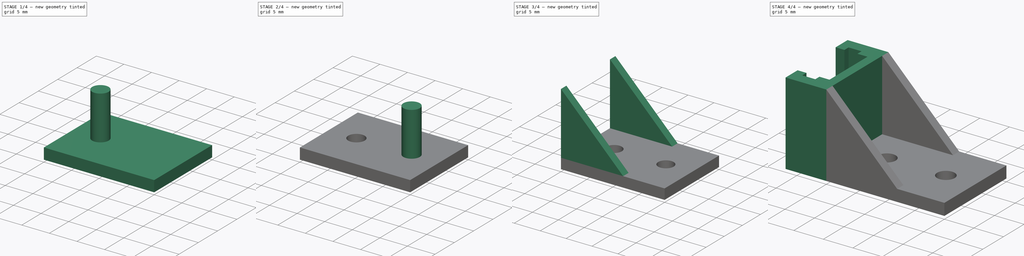
[diagram: build sequence overview — one tinted view per stage of 4, left to right]
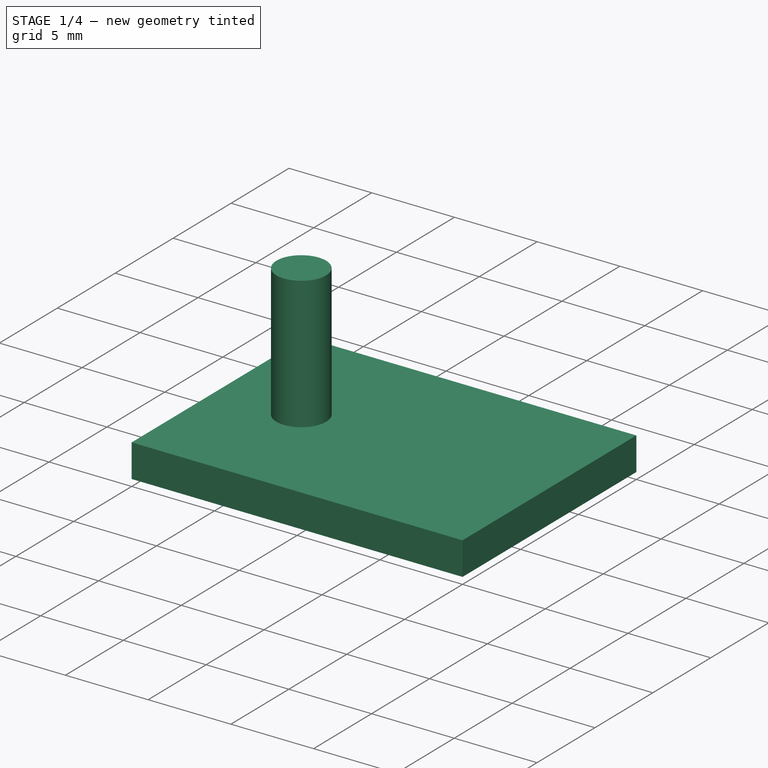
[diagram: stage 1 of 4 — iso view after this stage's code; geometry added in this stage tinted green]
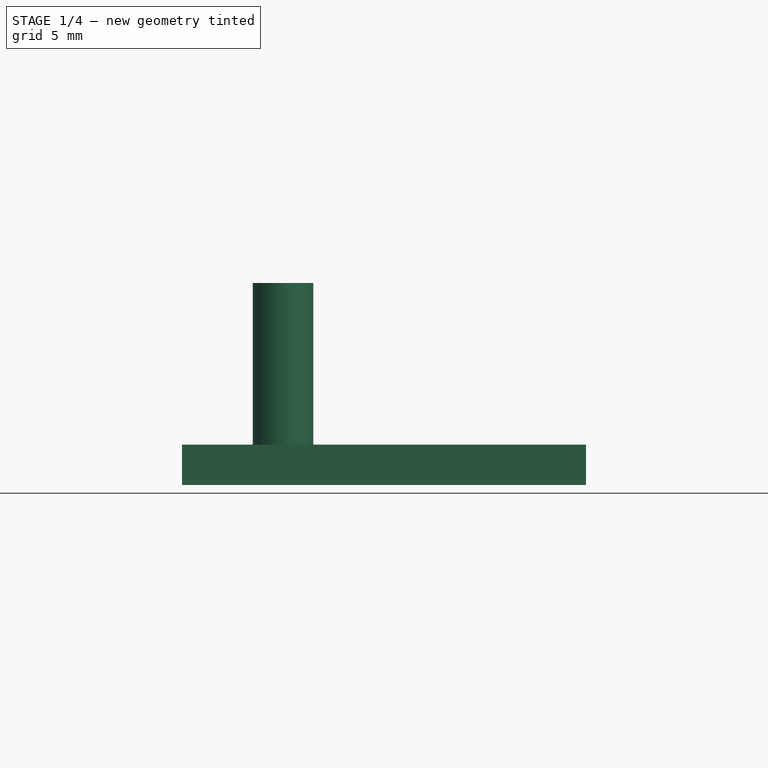
[diagram: stage 1 of 4 — front view after this stage's code; geometry added in this stage tinted green]
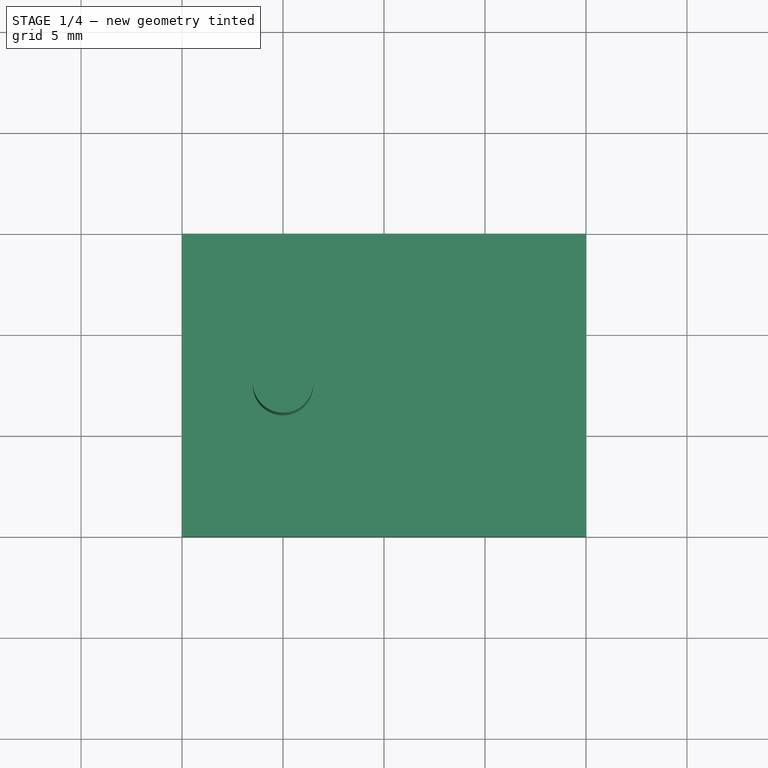
[diagram: stage 1 of 4 — top view after this stage's code; geometry added in this stage tinted green]
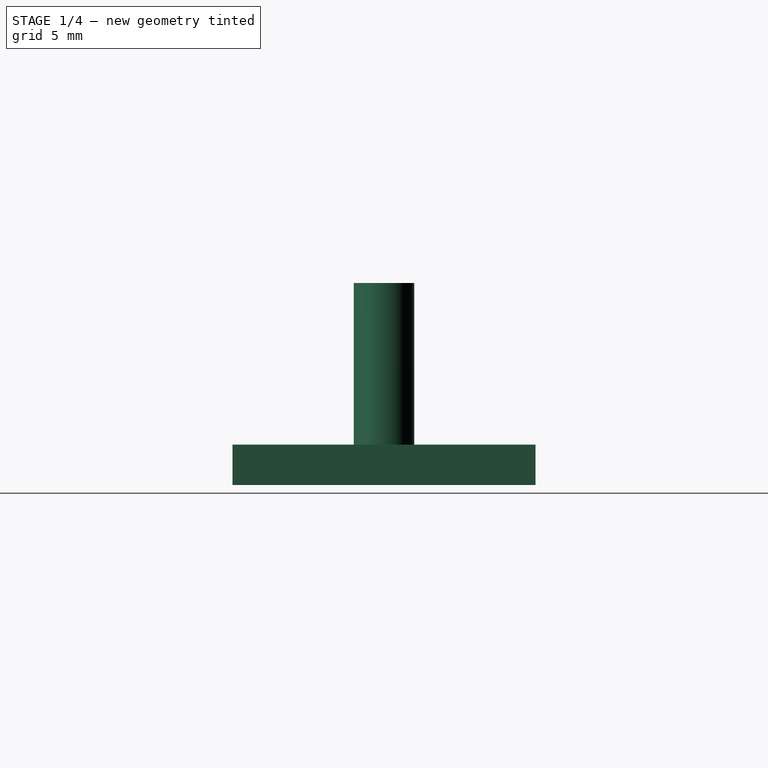
[diagram: stage 1 of 4 — right view after this stage's code; geometry added in this stage tinted green]
FCSTD DOCUMENT  (FreeCAD 0.16R6109 (Git))
Label: bracket1
License: All rights reserved
LicenseURL: http://en.wikipedia.org/wiki/All_rights_reserved
objects: Sketcher::SketchObject×3, PartDesign::Pad×3, Part::Cylinder×2, Part::Cut×2, Part::Box×1, Part::MultiFuse×1
note: 15 computed .brp shape members not serialized (recipe doc carries the construction recipe); baked Part::Feature solids carry a one-line shape summary decoded from their .brp

FEATURE [Part::Box] Box  label="Cube"
  Height = 2
  Length = 20
  Width = 15
FEATURE [Part::Cylinder] Cylinder
  Angle = 360
  Height = 10
  Placement = pos=(5,7.5,0) rot=(0,0,1;0rad)
  Radius = 1.5
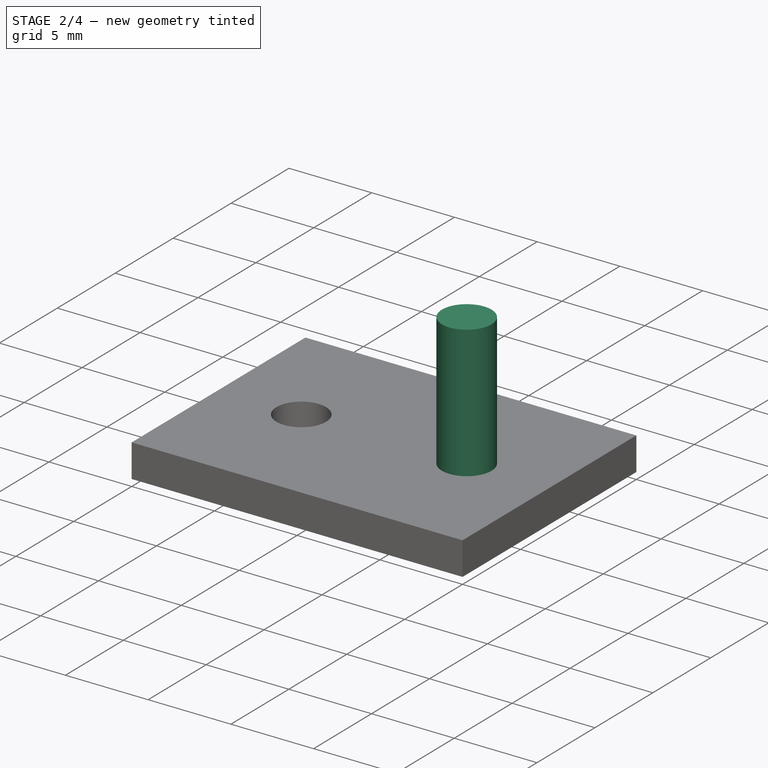
[diagram: stage 2 of 4 — iso view after this stage's code; geometry added in this stage tinted green]
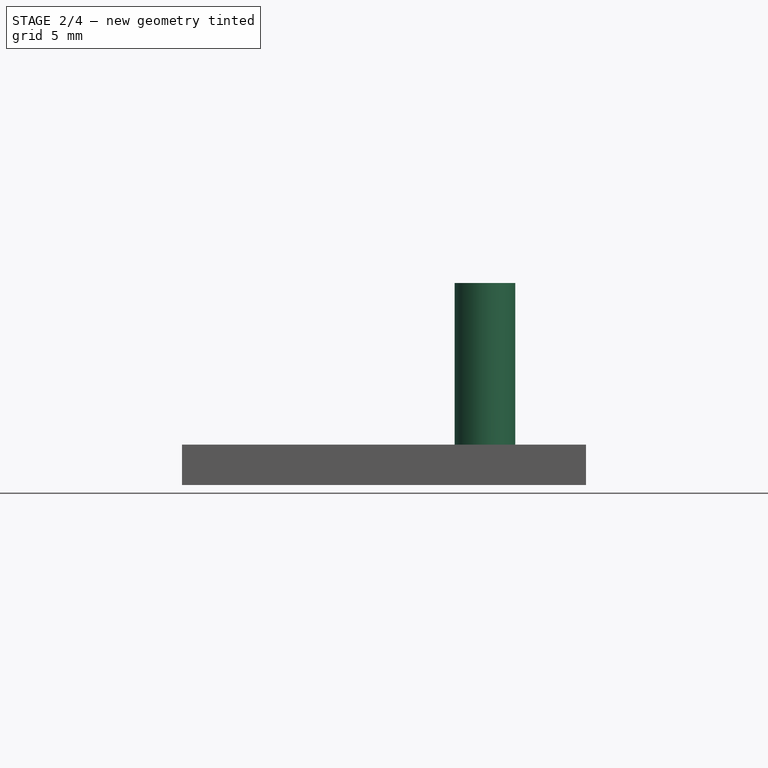
[diagram: stage 2 of 4 — front view after this stage's code; geometry added in this stage tinted green]
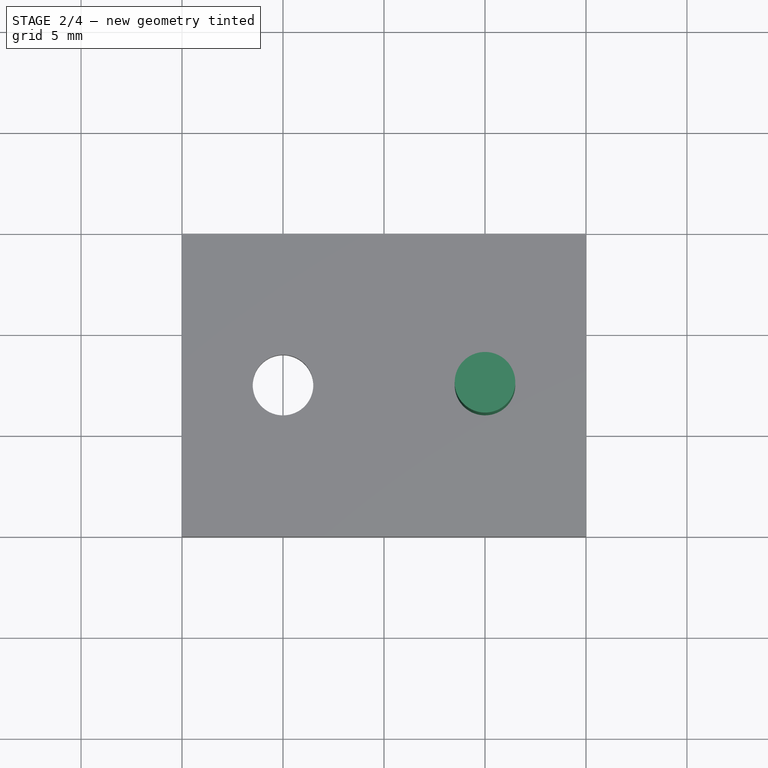
[diagram: stage 2 of 4 — top view after this stage's code; geometry added in this stage tinted green]
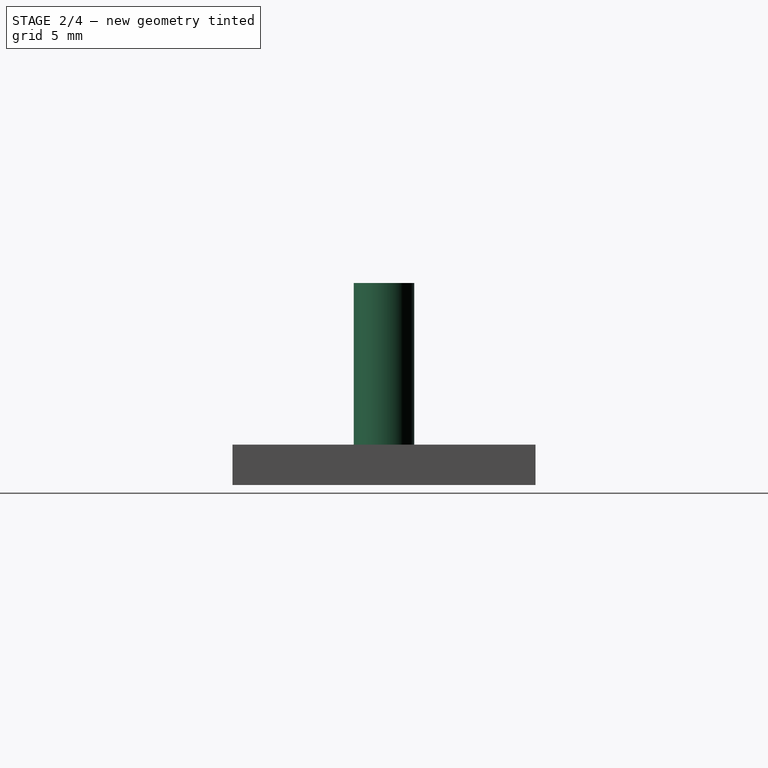
[diagram: stage 2 of 4 — right view after this stage's code; geometry added in this stage tinted green]
FEATURE [Part::Cylinder] Cylinder001
  Angle = 360
  Height = 10
  Placement = pos=(15,7.5,0) rot=(0,0,1;0rad)
  Radius = 1.5
FEATURE [Part::Cut] Cut
  Base = -> Box
  Tool = -> Cylinder
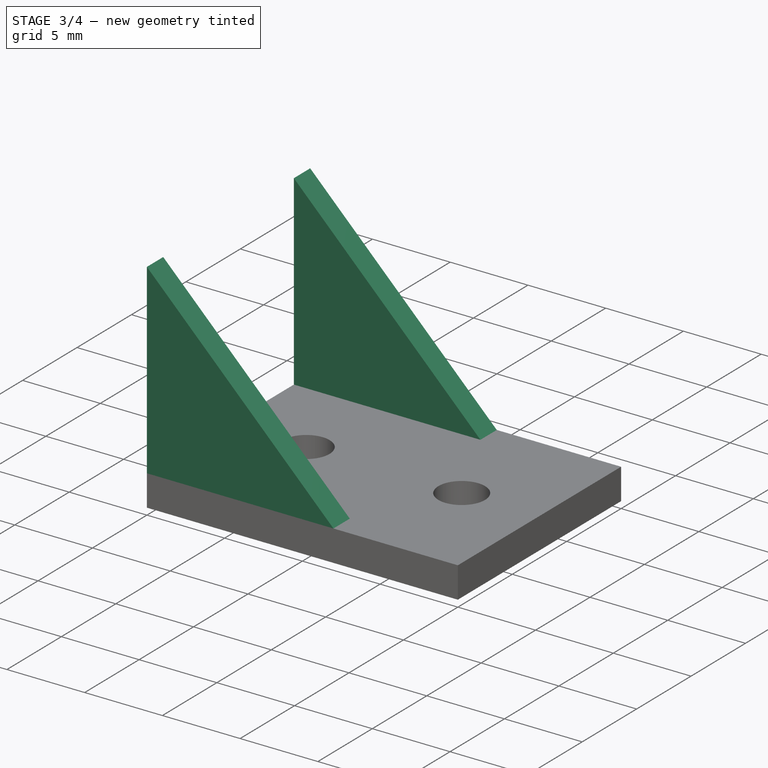
[diagram: stage 3 of 4 — iso view after this stage's code; geometry added in this stage tinted green]
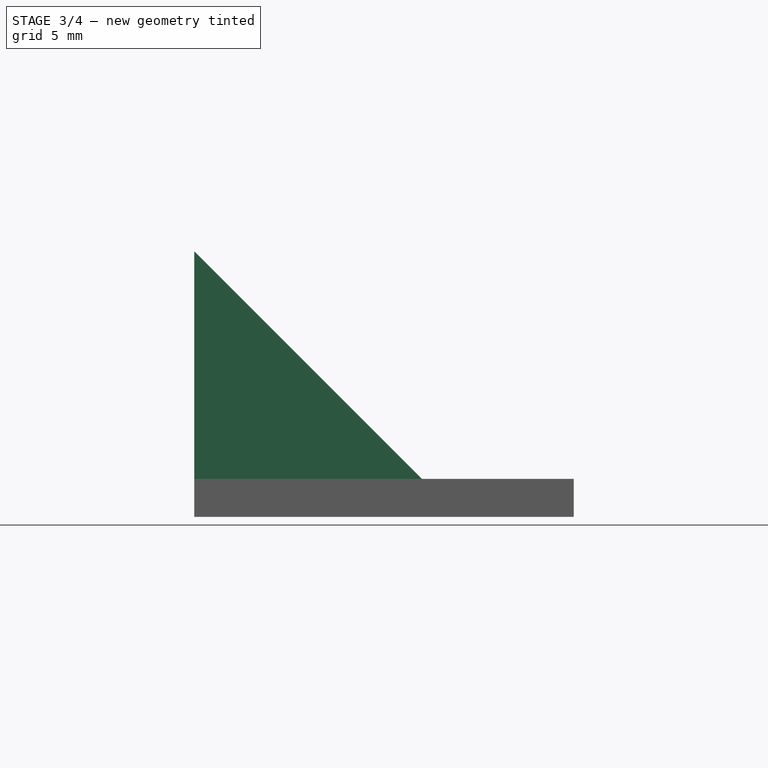
[diagram: stage 3 of 4 — front view after this stage's code; geometry added in this stage tinted green]
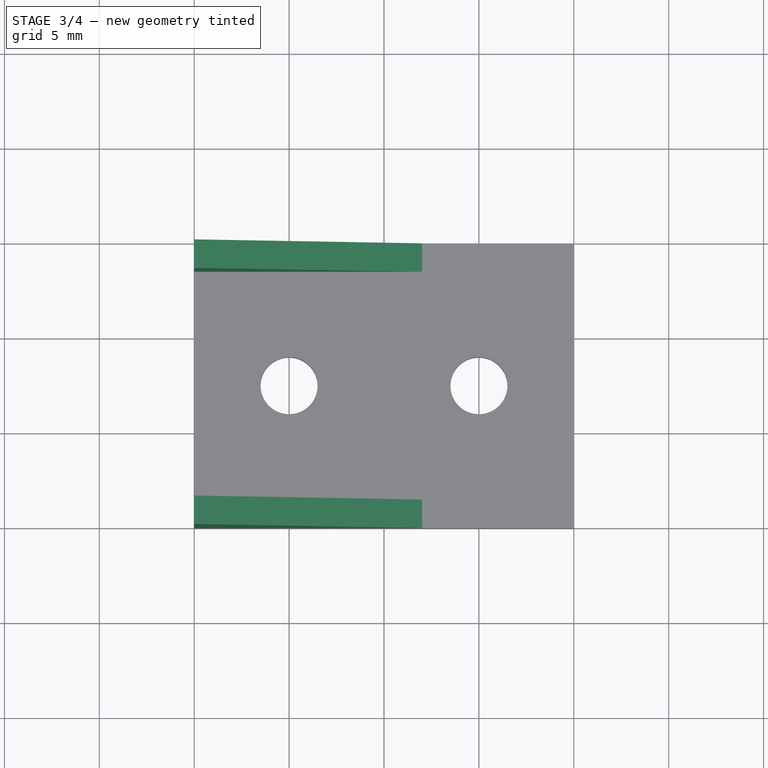
[diagram: stage 3 of 4 — top view after this stage's code; geometry added in this stage tinted green]
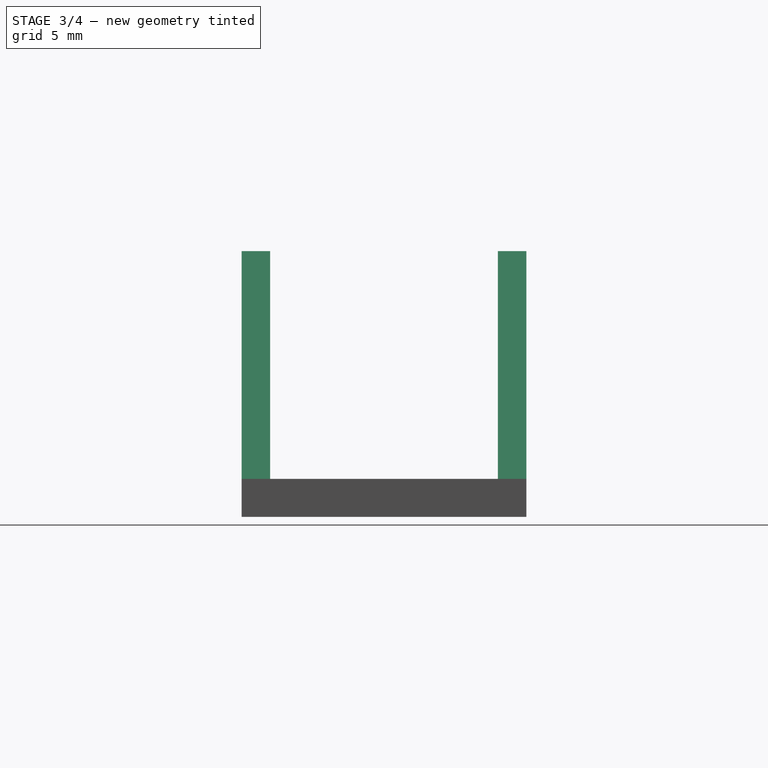
[diagram: stage 3 of 4 — right view after this stage's code; geometry added in this stage tinted green]
FEATURE [Sketcher::SketchObject] Sketch001
  Placement = pos=(0,15,0) rot=(1,0,0;1.5708rad)
  sketch-geometry (3):
    g0: LineSegment StartX=0 StartY=14 StartZ=0 EndX=12 EndY=2 EndZ=0
    g1: LineSegment StartX=12 StartY=2 StartZ=0 EndX=0 EndY=2 EndZ=0
    g2: LineSegment StartX=0 StartY=2 StartZ=0 EndX=0 EndY=14 EndZ=0
  constraints (9):
    c: PointOnObject(g0,g-2)
    c: Coincident(g0,g1)
    c: Coincident(g1,g2)
    c: Coincident(g2,g0)
    c: Vertical(g2)
    c: Distance(g-1,g1) = 2
    c: Parallel(g1,g-1)
    c: Equal(g1,g2)
    c: Distance(g1) = 12
FEATURE [PartDesign::Pad] Pad002
  Length = 1.5
  Length2 = 100
  Placement = pos=(0,15,0) rot=(1,0,0;1.5708rad)
  Sketch = -> Sketch001
  Type = 0
FEATURE [Sketcher::SketchObject] Sketch002
  Placement = pos=(0,1.5,0) rot=(1,0,0;1.5708rad)
  sketch-geometry (3):
    g0: LineSegment StartX=0 StartY=14 StartZ=0 EndX=12 EndY=2 EndZ=0
    g1: LineSegment StartX=12 StartY=2 StartZ=0 EndX=0 EndY=2 EndZ=0
    g2: LineSegment StartX=0 StartY=2 StartZ=0 EndX=0 EndY=14 EndZ=0
  constraints (9):
    c: PointOnObject(g0,g-2)
    c: Coincident(g0,g1)
    c: Coincident(g1,g2)
    c: Coincident(g2,g0)
    c: Vertical(g2)
    c: Distance(g-1,g1) = 2
    c: Parallel(g1,g-1)
    c: Equal(g1,g2)
    c: Distance(g1) = 12
FEATURE [PartDesign::Pad] Pad003
  Length = 1.5
  Length2 = 100
  Placement = pos=(0,1.5,0) rot=(1,0,0;1.5708rad)
  Sketch = -> Sketch002
  Type = 0
FEATURE [Part::Cut] Cut001
  Base = -> Cut
  Tool = -> Cylinder001
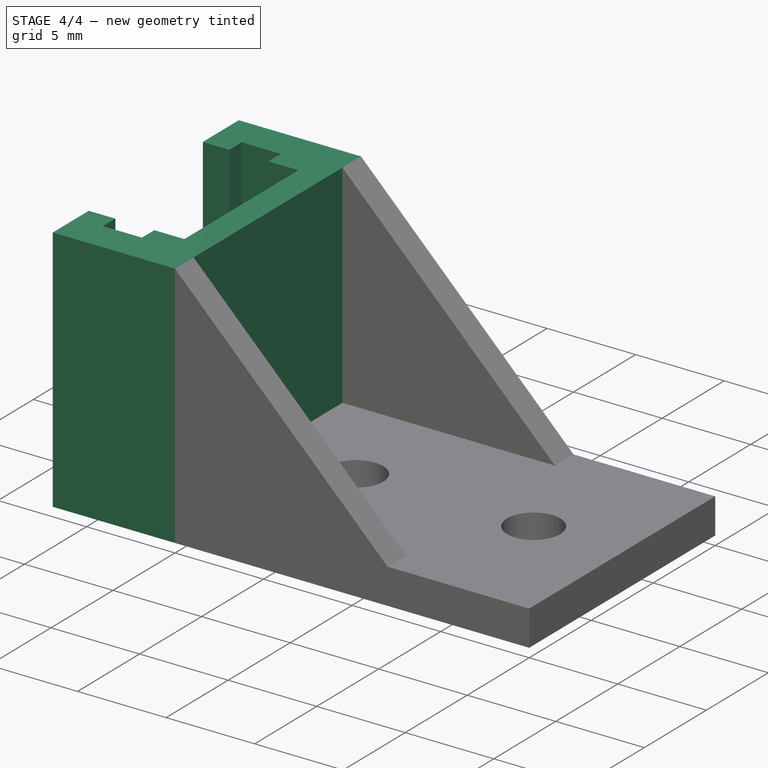
[diagram: stage 4 of 4 — iso view after this stage's code; geometry added in this stage tinted green]
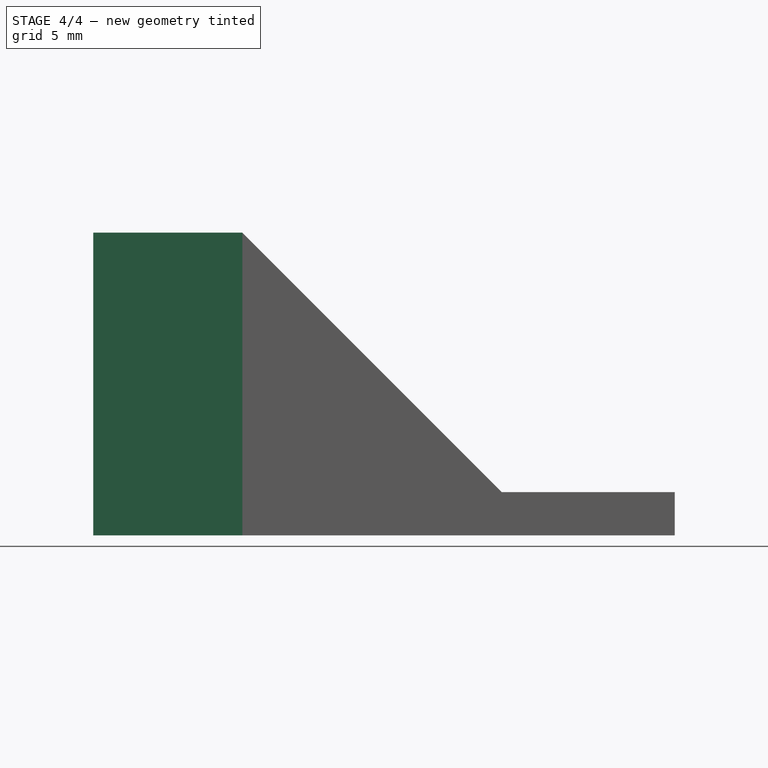
[diagram: stage 4 of 4 — front view after this stage's code; geometry added in this stage tinted green]
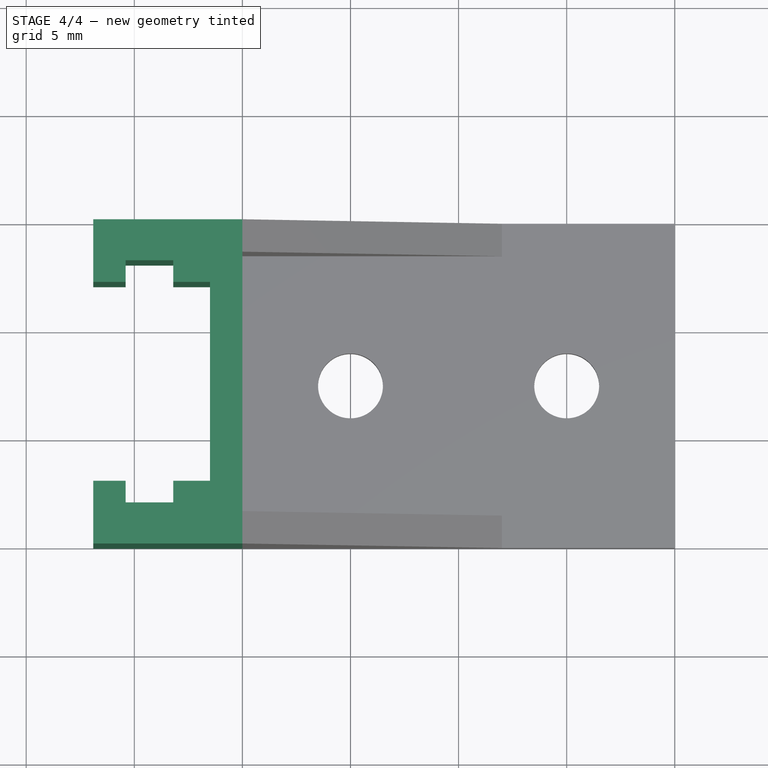
[diagram: stage 4 of 4 — top view after this stage's code; geometry added in this stage tinted green]
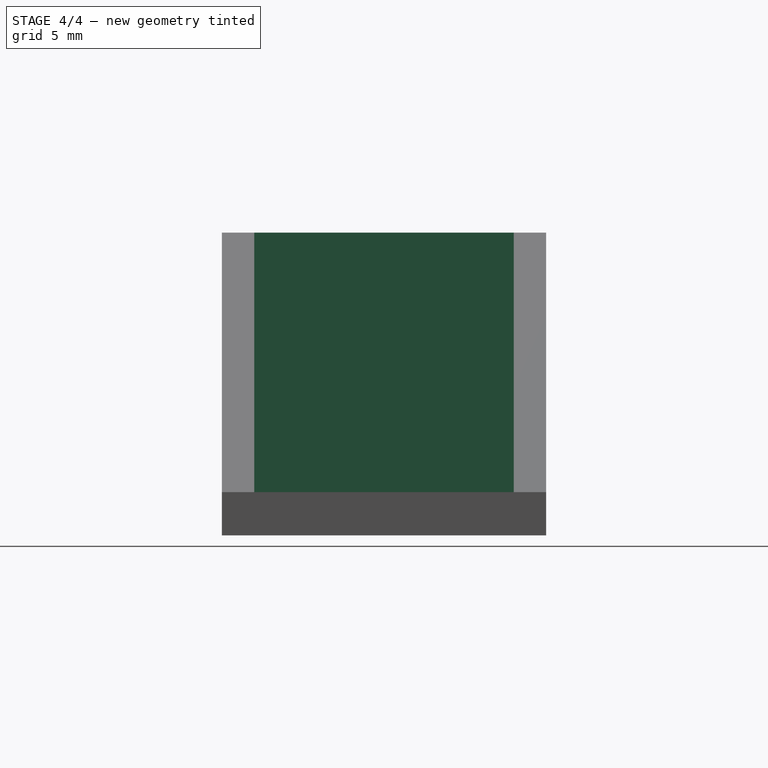
[diagram: stage 4 of 4 — right view after this stage's code; geometry added in this stage tinted green]
FEATURE [Sketcher::SketchObject] Sketch
  sketch-geometry (16):
    g0: LineSegment StartX=0 StartY=15 StartZ=0 EndX=-6.9 EndY=15 EndZ=0
    g1: LineSegment StartX=-6.9 StartY=15 StartZ=0 EndX=-6.9 EndY=12.1 EndZ=0
    g2: LineSegment StartX=-6.9 StartY=12.1 StartZ=0 EndX=-5.4 EndY=12.1 EndZ=0
    g3: LineSegment StartX=-5.4 StartY=12.1 StartZ=0 EndX=-5.4 EndY=13.1 EndZ=0
    g4: LineSegment StartX=-5.4 StartY=13.1 StartZ=0 EndX=-3.2 EndY=13.1 EndZ=0
    g5: LineSegment StartX=-3.2 StartY=13.1 StartZ=0 EndX=-3.2 EndY=12.1 EndZ=0
    g6: LineSegment StartX=-3.2 StartY=12.1 StartZ=0 EndX=-1.5 EndY=12.1 EndZ=0
    g7: LineSegment StartX=-1.5 StartY=12.1 StartZ=0 EndX=-1.5 EndY=2.9 EndZ=0
    g8: LineSegment StartX=-1.5 StartY=2.9 StartZ=0 EndX=-3.2 EndY=2.9 EndZ=0
    g9: LineSegment StartX=-3.2 StartY=2.9 StartZ=0 EndX=-3.2 EndY=1.9 EndZ=0
    g10: LineSegment StartX=-3.2 StartY=1.9 StartZ=0 EndX=-5.4 EndY=1.9 EndZ=0
    g11: LineSegment StartX=-5.4 StartY=1.9 StartZ=0 EndX=-5.4 EndY=2.9 EndZ=0
    g12: LineSegment StartX=-5.4 StartY=2.9 StartZ=0 EndX=-6.9 EndY=2.9 EndZ=0
    g13: LineSegment StartX=-6.9 StartY=2.9 StartZ=0 EndX=-6.9 EndY=0 EndZ=0
    g14: LineSegment StartX=-6.9 StartY=0 StartZ=0 EndX=0 EndY=0 EndZ=0
    g15: LineSegment StartX=0 StartY=0 StartZ=0 EndX=0 EndY=15 EndZ=0
  constraints (48):
    c: PointOnObject(g0,g-2)
    c: Horizontal(g0)
    c: Coincident(g0,g1)
    c: Vertical(g1)
    c: Coincident(g1,g2)
    c: Horizontal(g2)
    c: Coincident(g2,g3)
    c: Vertical(g3)
    c: Coincident(g3,g4)
    c: Horizontal(g4)
    c: Coincident(g4,g5)
    c: Coincident(g5,g6)
    c: Coincident(g6,g7)
    c: Vertical(g7)
    c: Coincident(g7,g8)
    c: Horizontal(g8)
    c: Coincident(g8,g9)
    c: Vertical(g9)
    c: Coincident(g9,g10)
    c: Horizontal(g10)
    c: Coincident(g10,g11)
    c: Coincident(g11,g12)
    c: Coincident(g12,g13)
    c: PointOnObject(g13,g-1)
    c: Vertical(g13)
    c: Coincident(g13,g14)
    c: Horizontal(g14)
    c: Coincident(g14,g15)
    c: Coincident(g15,g0)
    c: Vertical(g15)
    c: Distance(g8,g7) = 1.7
    c: Distance(g10,g9) = 2.2
    c: Distance(g12,g11) = 1.5
    c: Distance(g7,g15) = 1.5
    c: Parallel(g9,g11)
    c: Parallel(g12,g14)
    c: Distance(g8,g9) = 1
    c: Distance(g9,g14) = 1.9
    c: Distance(g11,g10) = 1
    c: Equal(g8,g6)
    c: Equal(g10,g4)
    c: Equal(g12,g2)
    c: Equal(g14,g0)
    c: Equal(g1,g13)
    c: Equal(g11,g3)
    c: Equal(g9,g5)
    c: Parallel(g6,g0)
    c: Distance(g-1,g0) = 15
FEATURE [PartDesign::Pad] Pad
  Length = 14
  Length2 = 100
  Sketch = -> Sketch
  Type = 0
FEATURE [Part::MultiFuse] Fusion
  Shapes = -> [Pad003,Cut001,Pad,Pad002]
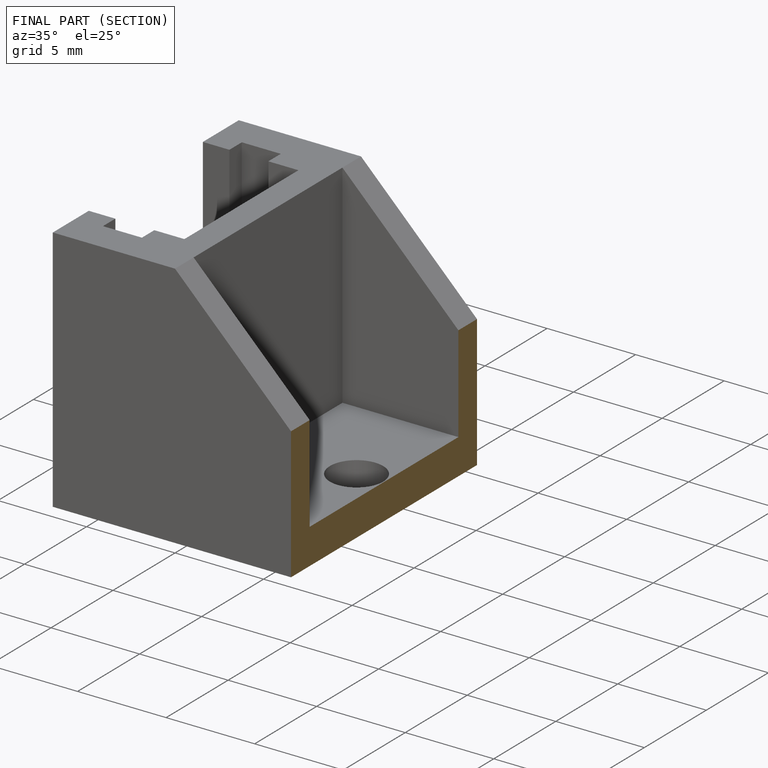
[diagram: finished part — half-section view (interior)]
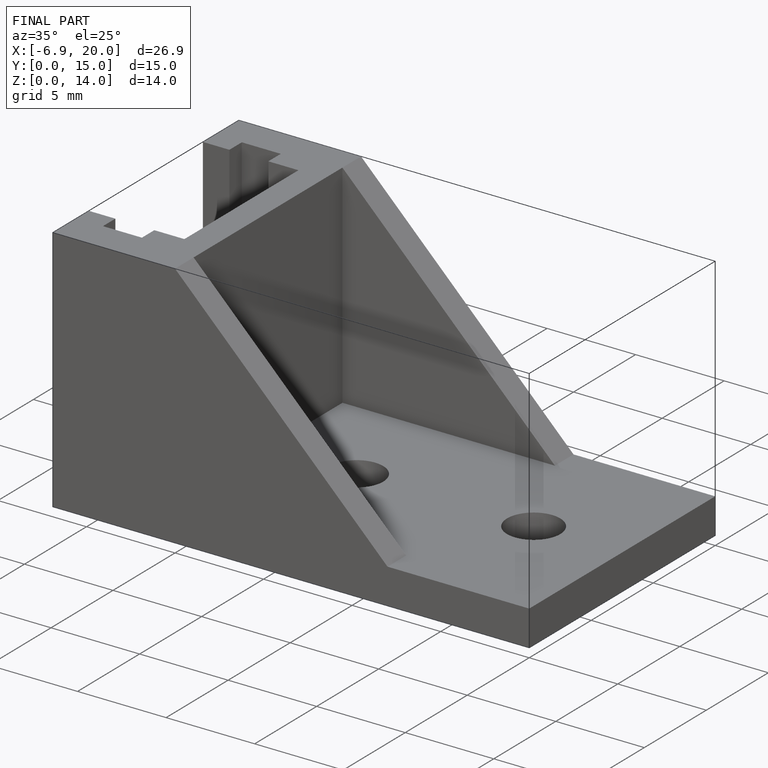
[diagram: finished part — iso view with bounding-box wireframe]
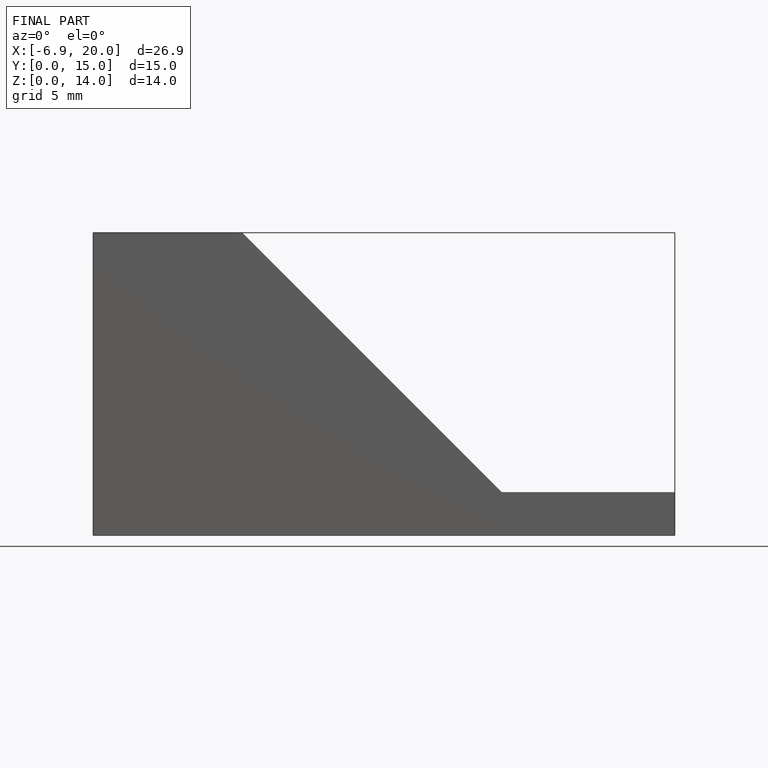
[diagram: finished part — front view with bounding-box wireframe]
